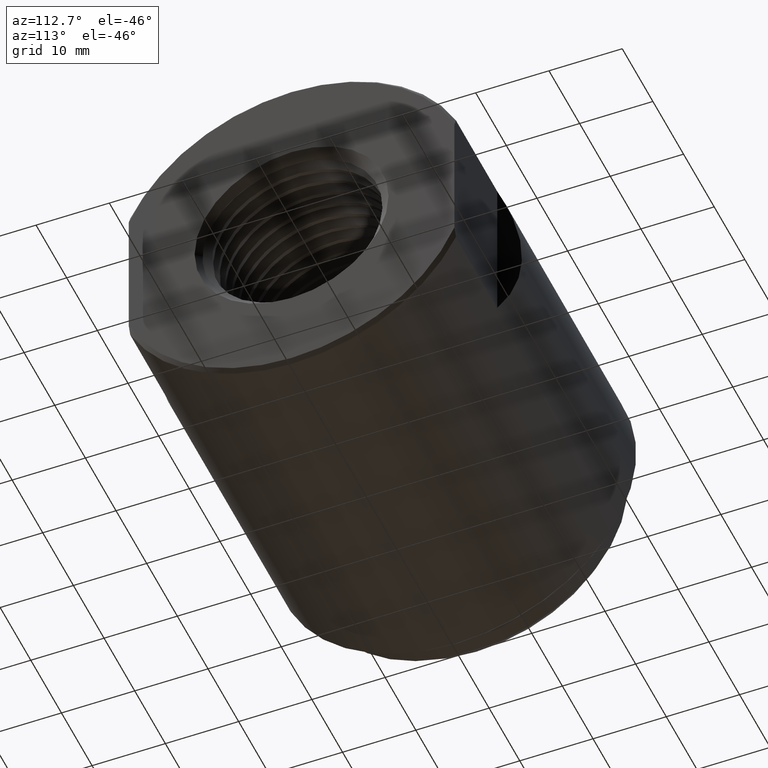
[diagram: clean part render]
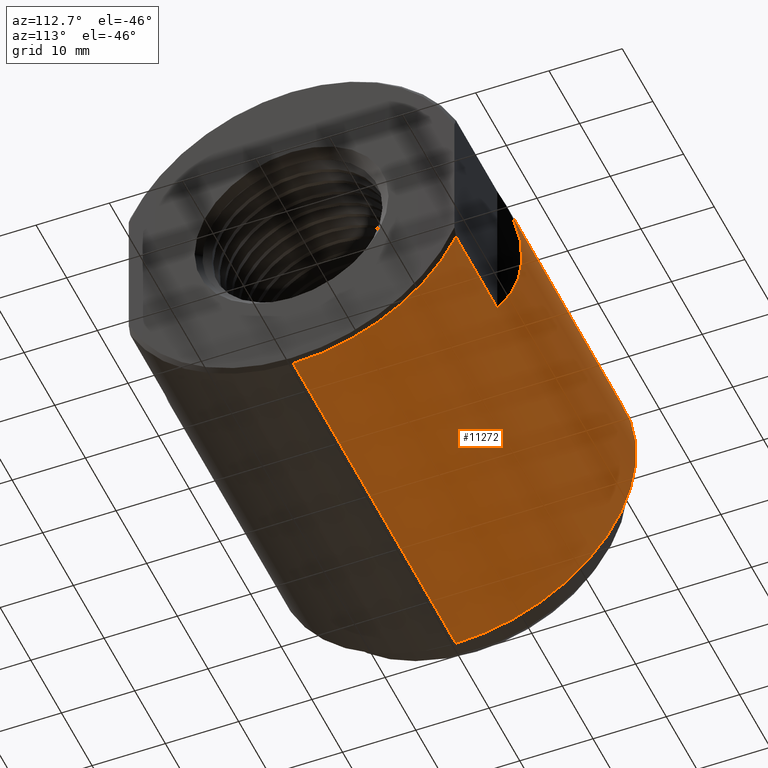
[diagram: same view with one face highlighted and labeled with its STEP entity id]
A machine part, auxiliary view. The second image highlights one B-rep face of the part: STEP entity #11272.
In plain terms, the highlighted cylindrical surface (partial cylindrical patch) has radius 24.6062 mm, axis along (-1, -0, -0).
Its self-contained STEP definition (entity closure, byte-faithful):
#412 = LINE ( 'NONE', #1314, #11654 ) ;
#419 = ORIENTED_EDGE ( 'NONE', *, *, #6311, .F. ) ;
#533 = CARTESIAN_POINT ( 'NONE',  ( 1.072844827586208805, 1.002155172413792927, 0.1481423044415057788 ) ) ;
#605 = DIRECTION ( 'NONE',  ( 0.0000000000000000000, 0.0000000000000000000, 1.000000000000000000 ) ) ;
#676 = ORIENTED_EDGE ( 'NONE', *, *, #8438, .F. ) ;
#804 = CARTESIAN_POINT ( 'NONE',  ( 1.199999999999999734, 0.8750000000000001110, -0.4157542092390651978 ) ) ;
#837 = CARTESIAN_POINT ( 'NONE',  ( 1.730000000000000204, 0.0000000000000000000, 0.0000000000000000000 ) ) ;
#949 = VERTEX_POINT ( 'NONE', #3792 ) ;
#1075 = CARTESIAN_POINT ( 'NONE',  ( -4.346121808102234339E-16, 0.8749999999999995559, -0.4157542092390651978 ) ) ;
#1314 = CARTESIAN_POINT ( 'NONE',  ( 0.0000000000000000000, 1.186376586673998227E-16, -0.9687499999999998890 ) ) ;
#1541 = CARTESIAN_POINT ( 'NONE',  ( 1.730000000000000204, 1.186376586673998227E-16, -0.9687499999999998890 ) ) ;
#1608 = EDGE_CURVE ( 'NONE', #13294, #949, #7407, .T. ) ;
#1612 = ORIENTED_EDGE ( 'NONE', *, *, #8953, .F. ) ;
#1644 = DIRECTION ( 'NONE',  ( -1.000000000000000000, -0.0000000000000000000, -0.0000000000000000000 ) ) ;
#2506 = VERTEX_POINT ( 'NONE', #9130 ) ;
#2649 = VERTEX_POINT ( 'NONE', #9256 ) ;
#2779 = LINE ( 'NONE', #9146, #10554 ) ;
#2868 = ORIENTED_EDGE ( 'NONE', *, *, #1608, .F. ) ;
#3232 = DIRECTION ( 'NONE',  ( -1.000000000000000000, -0.0000000000000000000, -0.0000000000000000000 ) ) ;
#3775 = CIRCLE ( 'NONE', #10198, 0.9687499999999998890 ) ;
#3792 = CARTESIAN_POINT ( 'NONE',  ( -0.3609999999999999876, 0.0000000000000000000, 0.9687500000000000000 ) ) ;
#4142 = AXIS2_PLACEMENT_3D ( 'NONE', #837, #5049, #12417 ) ;
#4194 = DIRECTION ( 'NONE',  ( 0.0000000000000000000, 0.0000000000000000000, 1.000000000000000000 ) ) ;
#4268 = CARTESIAN_POINT ( 'NONE',  ( 0.0000000000000000000, 0.0000000000000000000, 0.9687499999999998890 ) ) ;
#4443 = CARTESIAN_POINT ( 'NONE',  ( -0.3609999999999999876, 1.186376586673998473E-16, -0.9687500000000001110 ) ) ;
#4626 = DIRECTION ( 'NONE',  ( -1.000000000000000000, -0.0000000000000000000, -0.0000000000000000000 ) ) ;
#4713 = ORIENTED_EDGE ( 'NONE', *, *, #9570, .T. ) ;
#4904 = EDGE_CURVE ( 'NONE', #11410, #13710, #3775, .T. ) ;
#5049 = DIRECTION ( 'NONE',  ( -1.000000000000000000, -0.0000000000000000000, -0.0000000000000000000 ) ) ;
#5495 = VERTEX_POINT ( 'NONE', #10392 ) ;
#5790 = CARTESIAN_POINT ( 'NONE',  ( 1.730000000000000204, 0.0000000000000000000, 0.0000000000000000000 ) ) ;
#5927 = CARTESIAN_POINT ( 'NONE',  ( 1.072844827586208361, 1.002155172413793149, -0.1481423044415061119 ) ) ;
#6060 = CARTESIAN_POINT ( 'NONE',  ( 1.199999999999999734, 0.8750000000000001110, 0.4157542092390650867 ) ) ;
#6311 = EDGE_CURVE ( 'NONE', #2506, #5495, #2779, .T. ) ;
#6328 = DIRECTION ( 'NONE',  ( -1.000000000000000000, -0.0000000000000000000, -0.0000000000000000000 ) ) ;
#6363 = DIRECTION ( 'NONE',  ( -1.000000000000000000, -0.0000000000000000000, -0.0000000000000000000 ) ) ;
#6419 = DIRECTION ( 'NONE',  ( -1.000000000000000000, -0.0000000000000000000, -0.0000000000000000000 ) ) ;
#6592 = EDGE_CURVE ( 'NONE', #13710, #9033, #412, .T. ) ;
#6860 = EDGE_CURVE ( 'NONE', #2649, #2506, #10383, .T. ) ;
#7025 = CIRCLE ( 'NONE', #12347, 0.9687500000000000000 ) ;
#7059 = CARTESIAN_POINT ( 'NONE',  ( -0.3609999999999999876, 0.0000000000000000000, 0.0000000000000000000 ) ) ;
#7407 = LINE ( 'NONE', #4268, #9660 ) ;
#7913 = ORIENTED_EDGE ( 'NONE', *, *, #6860, .F. ) ;
#8438 = EDGE_CURVE ( 'NONE', #949, #9033, #7025, .T. ) ;
#8490 = FACE_OUTER_BOUND ( 'NONE', #10825, .T. ) ;
#8568 = CARTESIAN_POINT ( 'NONE',  ( 1.730000000000000204, 0.0000000000000000000, 0.9687499999999998890 ) ) ;
#8630 = DIRECTION ( 'NONE',  ( 0.0000000000000000000, 0.0000000000000000000, 1.000000000000000000 ) ) ;
#8953 = EDGE_CURVE ( 'NONE', #11410, #2649, #9450, .T. ) ;
#9033 = VERTEX_POINT ( 'NONE', #4443 ) ;
#9130 = CARTESIAN_POINT ( 'NONE',  ( 1.199999999999999734, 0.8750000000000001110, 0.4157542092390650867 ) ) ;
#9146 = CARTESIAN_POINT ( 'NONE',  ( -4.346121808102234339E-16, 0.8749999999999995559, 0.4157542092390651978 ) ) ;
#9256 = CARTESIAN_POINT ( 'NONE',  ( 1.199999999999999734, 0.8750000000000001110, -0.4157542092390651978 ) ) ;
#9296 = CARTESIAN_POINT ( 'NONE',  ( 1.730000000000000204, 0.8750000000000003331, -0.4157542092390635324 ) ) ;
#9450 = LINE ( 'NONE', #1075, #11896 ) ;
#9570 = EDGE_CURVE ( 'NONE', #13294, #5495, #12354, .T. ) ;
#9660 = VECTOR ( 'NONE', #6363, 39.37007874015748143 ) ;
#9856 = ORIENTED_EDGE ( 'NONE', *, *, #4904, .T. ) ;
#10198 = AXIS2_PLACEMENT_3D ( 'NONE', #5790, #1644, #605 ) ;
#10383 =( BOUNDED_CURVE ( )  B_SPLINE_CURVE ( 3, ( #804, #5927, #533, #6060 ),
 .UNSPECIFIED., .F., .F. ) 
 B_SPLINE_CURVE_WITH_KNOTS ( ( 4, 4 ),
 ( 5.839616494063812446, 6.726754120295360018 ),
 .UNSPECIFIED. ) 
 CURVE ( )  GEOMETRIC_REPRESENTATION_ITEM ( )  RATIONAL_B_SPLINE_CURVE ( ( 1.000000000000000000, 0.9354838709677417707, 0.9354838709677417707, 1.000000000000000000 ) ) 
 REPRESENTATION_ITEM ( '' )  );
#10392 = CARTESIAN_POINT ( 'NONE',  ( 1.730000000000000204, 0.8750000000000003331, 0.4157542092390636435 ) ) ;
#10554 = VECTOR ( 'NONE', #12484, 39.37007874015748143 ) ;
#10630 = ORIENTED_EDGE ( 'NONE', *, *, #6592, .T. ) ;
#10825 = EDGE_LOOP ( 'NONE', ( #9856, #10630, #676, #2868, #4713, #419, #7913, #1612 ) ) ;
#11272 = ADVANCED_FACE ( 'NONE', ( #8490 ), #11831, .T. ) ;
#11410 = VERTEX_POINT ( 'NONE', #9296 ) ;
#11654 = VECTOR ( 'NONE', #4626, 39.37007874015748143 ) ;
#11831 = CYLINDRICAL_SURFACE ( 'NONE', #13218, 0.9687499999999998890 ) ;
#11896 = VECTOR ( 'NONE', #6328, 39.37007874015748143 ) ;
#12347 = AXIS2_PLACEMENT_3D ( 'NONE', #7059, #6419, #4194 ) ;
#12354 = CIRCLE ( 'NONE', #4142, 0.9687499999999998890 ) ;
#12417 = DIRECTION ( 'NONE',  ( 0.0000000000000000000, 0.0000000000000000000, 1.000000000000000000 ) ) ;
#12484 = DIRECTION ( 'NONE',  ( 1.000000000000000000, 0.0000000000000000000, 0.0000000000000000000 ) ) ;
#12734 = CARTESIAN_POINT ( 'NONE',  ( 0.0000000000000000000, 0.0000000000000000000, 0.0000000000000000000 ) ) ;
#13218 = AXIS2_PLACEMENT_3D ( 'NONE', #12734, #3232, #8630 ) ;
#13294 = VERTEX_POINT ( 'NONE', #8568 ) ;
#13710 = VERTEX_POINT ( 'NONE', #1541 ) ;